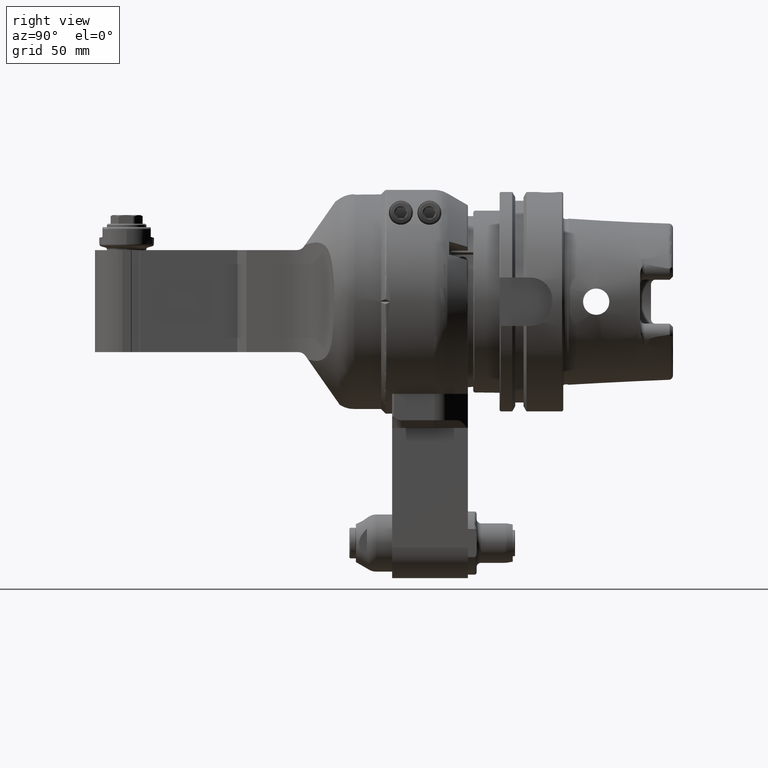
[diagram: clean part render]
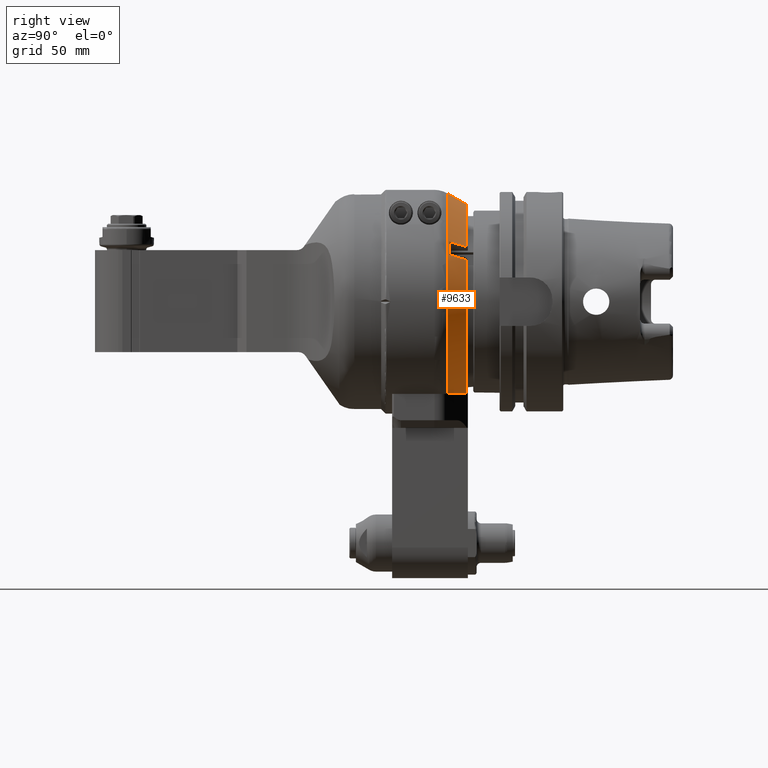
[diagram: same view with one face highlighted and labeled with its STEP entity id]
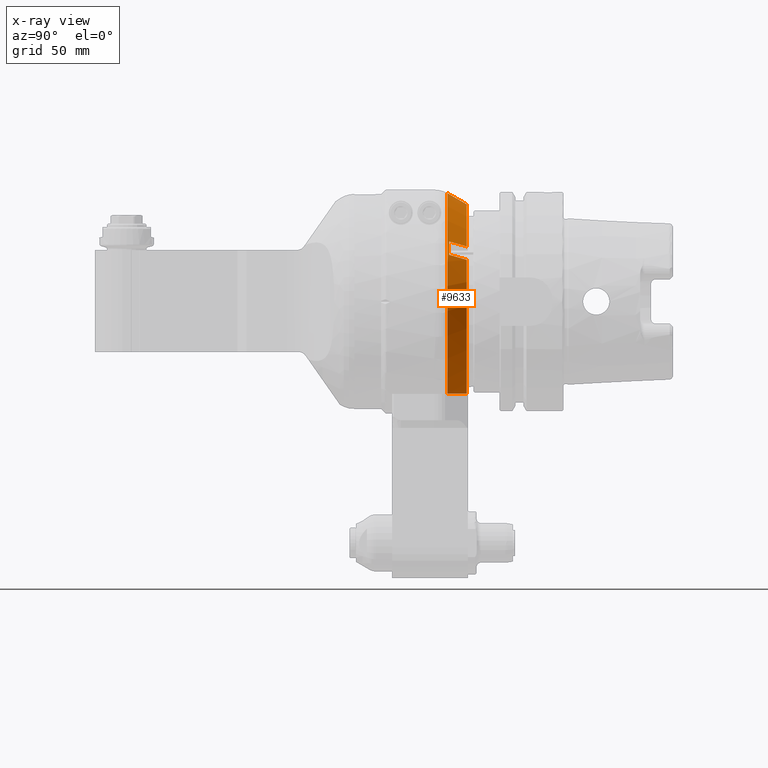
[diagram: x-ray of the same camera — body ghosted, the highlighted face saturated]
A machine part, right view. The second image highlights one B-rep face of the part: STEP entity #9633.
The next image is the same camera in x-ray: the body ghosted, the highlighted face saturated — about 0% of this face is hidden behind the body in this view.
In plain terms, the highlighted conical surface has half-angle 30 deg.
Its self-contained STEP definition (entity closure, byte-faithful):
#152=B_SPLINE_CURVE_WITH_KNOTS('',3,(#18919,#18920,#18921,#18922,#18923,
#18924,#18925,#18926,#18927,#18928),.UNSPECIFIED.,.F.,.F.,(4,3,3,4),(2.46580432149833E-6,
0.3333333333333,0.6666666666667,1.),.UNSPECIFIED.);
#154=B_SPLINE_CURVE_WITH_KNOTS('',3,(#18986,#18987,#18988,#18989,#18990,
#18991,#18992,#18993,#18994,#18995),.UNSPECIFIED.,.F.,.F.,(4,3,3,4),(7.52032370648545E-6,
0.3333333333333,0.6666666666667,1.),.UNSPECIFIED.);
#155=B_SPLINE_CURVE_WITH_KNOTS('',3,(#19014,#19015,#19016,#19017,#19018,
#19019,#19020,#19021,#19022,#19023),.UNSPECIFIED.,.F.,.F.,(4,3,3,4),(0.,
0.3333333333333,0.6666666666667,0.999992978090841),.UNSPECIFIED.);
#222=(
BOUNDED_CURVE()
B_SPLINE_CURVE(2,(#19049,#19050,#19051),.UNSPECIFIED.,.F.,.F.)
B_SPLINE_CURVE_WITH_KNOTS((3,3),(-4.73034459603325,-2.88449165306735),
 .UNSPECIFIED.)
CURVE()
GEOMETRIC_REPRESENTATION_ITEM()
RATIONAL_B_SPLINE_CURVE((1.01131829754014,1.03049775008726,1.03298555559719))
REPRESENTATION_ITEM('')
);
#1940=CONICAL_SURFACE('',#10576,46.84048999,0.523598775598299);
#2260=FACE_OUTER_BOUND('',#2874,.T.);
#2874=EDGE_LOOP('',(#7674,#7675,#7676,#7677,#7678,#7679,#7680,#7681));
#3525=CIRCLE('',#10562,48.90747728811);
#3532=CIRCLE('',#10575,44.28867513459);
#3533=CIRCLE('',#10577,44.28867513459);
#3534=CIRCLE('',#10578,49.39230484541);
#4297=VERTEX_POINT('',#18909);
#4298=VERTEX_POINT('',#18918);
#4313=VERTEX_POINT('',#18983);
#4314=VERTEX_POINT('',#18985);
#4316=VERTEX_POINT('',#18999);
#4321=VERTEX_POINT('',#19012);
#4323=VERTEX_POINT('',#19047);
#4324=VERTEX_POINT('',#19048);
#5487=EDGE_CURVE('',#4298,#4297,#152,.T.);
#5511=EDGE_CURVE('',#4314,#4313,#154,.T.);
#5514=EDGE_CURVE('',#4316,#4313,#3525,.T.);
#5521=EDGE_CURVE('',#4316,#4321,#155,.T.);
#5527=EDGE_CURVE('',#4298,#4321,#3532,.T.);
#5528=EDGE_CURVE('',#4323,#4324,#222,.T.);
#5529=EDGE_CURVE('',#4314,#4323,#3533,.T.);
#5530=EDGE_CURVE('',#4324,#4297,#3534,.T.);
#7674=ORIENTED_EDGE('',*,*,#5528,.F.);
#7675=ORIENTED_EDGE('',*,*,#5529,.F.);
#7676=ORIENTED_EDGE('',*,*,#5511,.T.);
#7677=ORIENTED_EDGE('',*,*,#5514,.F.);
#7678=ORIENTED_EDGE('',*,*,#5521,.T.);
#7679=ORIENTED_EDGE('',*,*,#5527,.F.);
#7680=ORIENTED_EDGE('',*,*,#5487,.T.);
#7681=ORIENTED_EDGE('',*,*,#5530,.F.);
#9633=ADVANCED_FACE('',(#2260),#1940,.T.);
#10562=AXIS2_PLACEMENT_3D('',#19001,#12665,#12666);
#10575=AXIS2_PLACEMENT_3D('',#19045,#12694,#12695);
#10576=AXIS2_PLACEMENT_3D('',#19046,#12696,#12697);
#10577=AXIS2_PLACEMENT_3D('',#19052,#12698,#12699);
#10578=AXIS2_PLACEMENT_3D('',#19053,#12700,#12701);
#12665=DIRECTION('center_axis',(0.,1.,0.));
#12666=DIRECTION('ref_axis',(0.828023092261376,0.,0.560693997365684));
#12694=DIRECTION('center_axis',(0.,1.,0.));
#12695=DIRECTION('ref_axis',(0.0338687033523017,0.,0.999426290895549));
#12696=DIRECTION('center_axis',(0.,-1.,0.));
#12697=DIRECTION('ref_axis',(0.,0.,1.));
#12698=DIRECTION('center_axis',(0.,1.,0.));
#12699=DIRECTION('ref_axis',(0.902830377486504,0.,0.429996871485802));
#12700=DIRECTION('center_axis',(0.,-1.,0.));
#12701=DIRECTION('ref_axis',(0.526241939180605,0.,-0.850334887822108));
#18909=CARTESIAN_POINT('',(1.5000000963112,146.160265019211,49.3695164173452));
#18918=CARTESIAN_POINT('',(1.49999993762388,155.000000032869,44.2632663030781));
#18919=CARTESIAN_POINT('Ctrl Pts',(1.5,155.000000033258,44.2632663037556));
#18920=CARTESIAN_POINT('Ctrl Pts',(1.5,154.051781681097,44.8110346841607));
#18921=CARTESIAN_POINT('Ctrl Pts',(1.5,153.092270653092,45.3653149713296));
#18922=CARTESIAN_POINT('Ctrl Pts',(1.5,152.121484701025,45.9260973702882));
#18923=CARTESIAN_POINT('Ctrl Pts',(1.5,151.1506915676,46.4868839176166));
#18924=CARTESIAN_POINT('Ctrl Pts',(1.5,150.1686233433,47.0541726729334));
#18925=CARTESIAN_POINT('Ctrl Pts',(1.5,149.17510108345,47.6280674204218));
#18926=CARTESIAN_POINT('Ctrl Pts',(1.5,148.1815788236,48.2019621679101));
#18927=CARTESIAN_POINT('Ctrl Pts',(1.5,147.1766025282,48.78246290757));
#18928=CARTESIAN_POINT('Ctrl Pts',(1.5,146.1602759987,49.36951007704));
#18983=CARTESIAN_POINT('',(43.9965205788,147.,21.35995111525));
#18985=CARTESIAN_POINT('',(39.9851327385034,155.000057431159,19.0439746816777));
#18986=CARTESIAN_POINT('Ctrl Pts',(39.9851325718201,155.00005748882,19.043975169597));
#18987=CARTESIAN_POINT('Ctrl Pts',(40.4099158802022,154.153147906388,19.2892239270387));
#18988=CARTESIAN_POINT('Ctrl Pts',(40.8415882632365,153.292414942696,19.5384500935853));
#18989=CARTESIAN_POINT('Ctrl Pts',(41.2801882053036,152.41778243575,19.7916758882043));
#18990=CARTESIAN_POINT('Ctrl Pts',(41.7187980428347,151.5431301958,20.0449073959722));
#18991=CARTESIAN_POINT('Ctrl Pts',(42.1643357519941,150.6545777854,20.3021387122895));
#18992=CARTESIAN_POINT('Ctrl Pts',(42.6170321317606,149.751665139,20.5635030890088));
#18993=CARTESIAN_POINT('Ctrl Pts',(43.0697285115269,148.8487524926,20.8248674657281));
#18994=CARTESIAN_POINT('Ctrl Pts',(43.5295835619003,147.9314796102,21.0903649028494));
#18995=CARTESIAN_POINT('Ctrl Pts',(43.9965205787995,147.,21.3599511152508));
#18999=CARTESIAN_POINT('',(40.4965205788,147.,27.42212894174));
#19001=CARTESIAN_POINT('Origin',(0.,147.,0.));
#19012=CARTESIAN_POINT('',(36.4851341375766,155.000053666379,25.1061544459893));
#19014=CARTESIAN_POINT('Ctrl Pts',(40.4965205787991,147.,27.4221289417415));
#19015=CARTESIAN_POINT('Ctrl Pts',(40.0299271200304,147.9307942557,27.1527410827192));
#19016=CARTESIAN_POINT('Ctrl Pts',(39.5703008937805,148.84761078075,26.8873757572672));
#19017=CARTESIAN_POINT('Ctrl Pts',(39.1177153521376,149.750302441225,26.6260753729683));
#19018=CARTESIAN_POINT('Ctrl Pts',(38.6651298104945,150.6529941017,26.3647749886693));
#19019=CARTESIAN_POINT('Ctrl Pts',(38.2195849534584,151.5415608976,26.1075395455235));
#19020=CARTESIAN_POINT('Ctrl Pts',(37.7808595612693,152.416443653675,25.8542413222428));
#19021=CARTESIAN_POINT('Ctrl Pts',(37.3421434111499,153.291307979708,25.6009484348735));
#19022=CARTESIAN_POINT('Ctrl Pts',(36.9102464385665,154.152488842439,25.3515926014903));
#19023=CARTESIAN_POINT('Ctrl Pts',(36.4851344544445,155.000053720178,25.1061540830217));
#19045=CARTESIAN_POINT('Origin',(0.,155.,0.));
#19046=CARTESIAN_POINT('Origin',(0.,150.5801270189,0.));
#19047=CARTESIAN_POINT('',(14.0529977341311,154.999999998155,-41.9999999994745));
#19048=CARTESIAN_POINT('',(25.9923022715374,146.160254044872,-42.0000000019538));
#19049=CARTESIAN_POINT('Ctrl Pts',(14.0529977345346,154.999999997054,-42.));
#19050=CARTESIAN_POINT('Ctrl Pts',(19.6974303615923,151.897889892715,-42.));
#19051=CARTESIAN_POINT('Ctrl Pts',(25.9923022695667,146.160254049558,-42.));
#19052=CARTESIAN_POINT('Origin',(0.,155.,0.));
#19053=CARTESIAN_POINT('Origin',(0.,146.1602540378,0.));